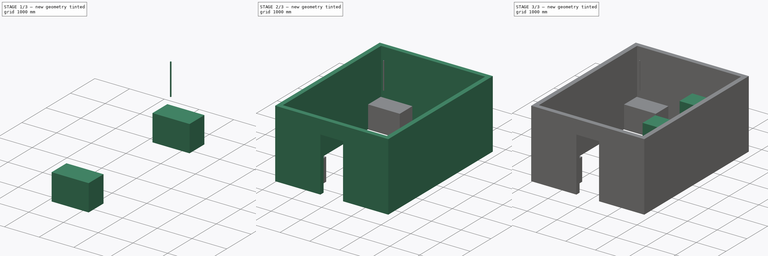
[diagram: build sequence overview — one tinted view per stage of 3, left to right]
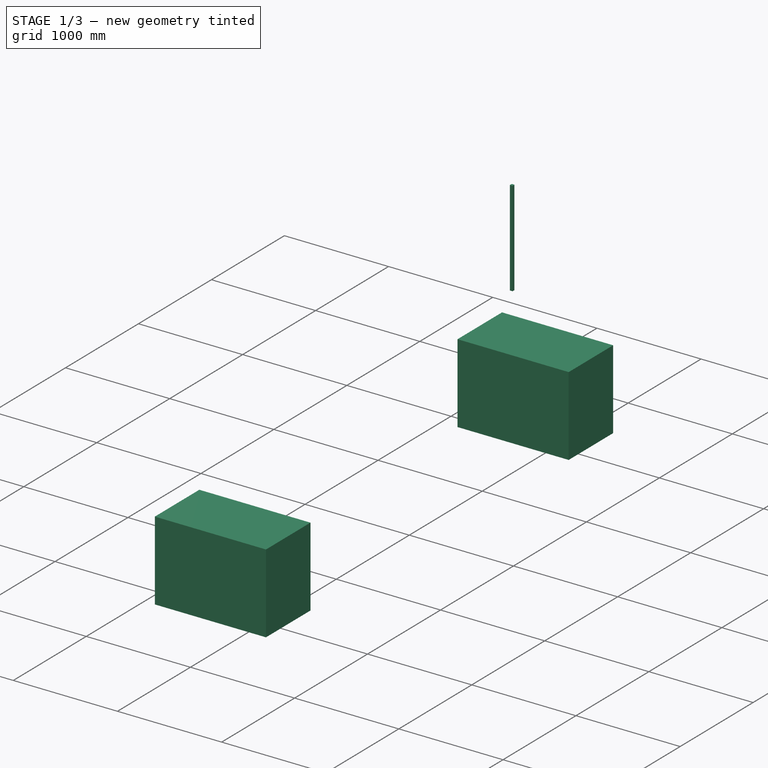
[diagram: stage 1 of 3 — iso view after this stage's code; geometry added in this stage tinted green]
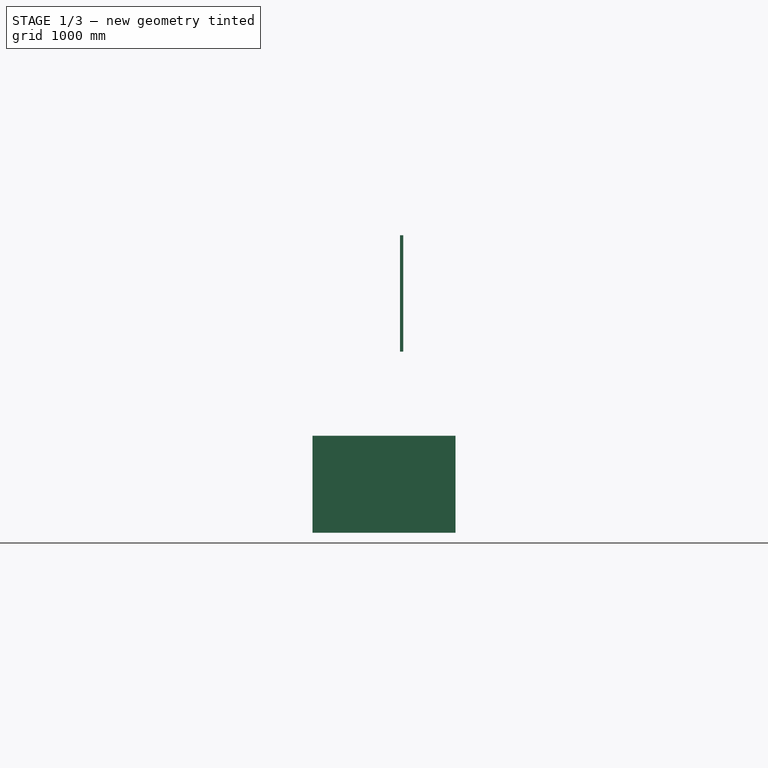
[diagram: stage 1 of 3 — front view after this stage's code; geometry added in this stage tinted green]
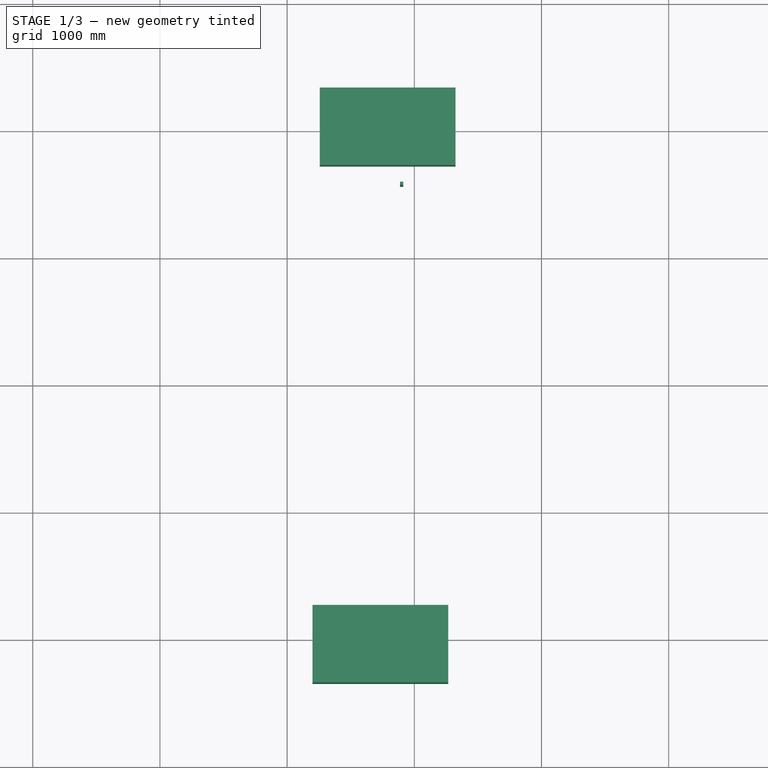
[diagram: stage 1 of 3 — top view after this stage's code; geometry added in this stage tinted green]
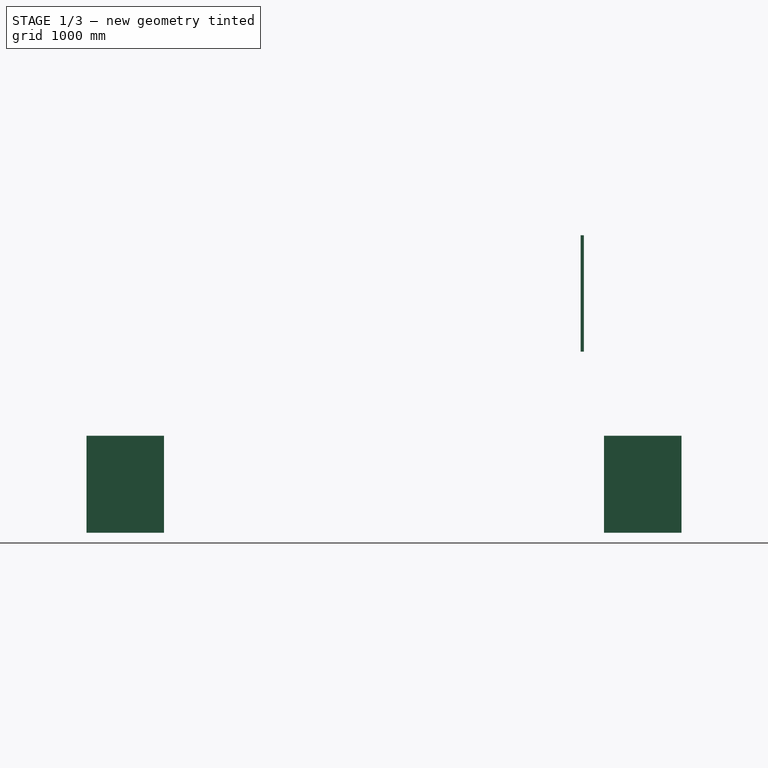
[diagram: stage 1 of 3 — right view after this stage's code; geometry added in this stage tinted green]
FCSTD DOCUMENT  (FreeCAD 0.16R6704 (Git))
Label: room1
License: All rights reserved
LicenseURL: http://en.wikipedia.org/wiki/All_rights_reserved
objects: Part::Box×6, Sketcher::SketchObject×2, Part::Feature×2, PartDesign::Pad×1, App::MeasureDistance×1, PartDesign::Pocket×1, App::DocumentObjectGroup×1
note: 14 computed .brp shape members not serialized (recipe doc carries the construction recipe); baked Part::Feature solids carry a one-line shape summary decoded from their .brp

FEATURE [App::DocumentObjectGroup] Group  label="Room001"
  Group = -> [Pocket,Pad]
FEATURE [Part::Box] Box003  label="Desk 1"
  Height = 762
  Length = 1066.8
  Placement = pos=(-1800.06,-2344.93,0) rot=(0,0,1;0rad)
  Width = 609.6
FEATURE [Part::Box] Box004  label="Desk 2"
  Height = 762
  Length = 1066.8
  Placement = pos=(-1743.36,1723.38,-3.81366e-05) rot=(0,0,1;0rad)
  Width = 609.6
FEATURE [Part::Box] Box005  label="Yard Stick"
  Height = 914.4
  Length = 25.4
  Placement = pos=(-1112.03,1539.79,1423.88) rot=(0,0,1;0rad)
  Width = 25.4
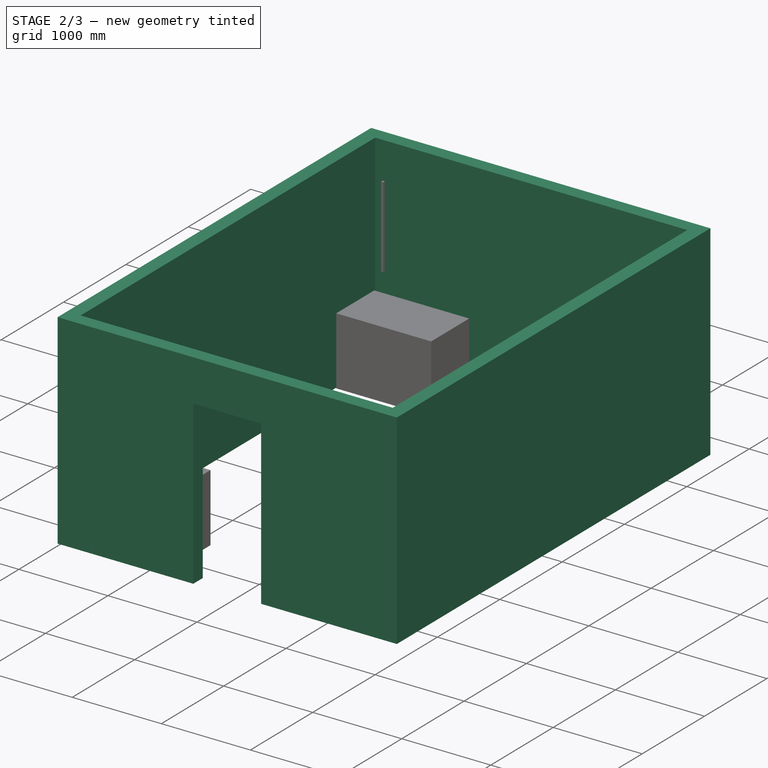
[diagram: stage 2 of 3 — iso view after this stage's code; geometry added in this stage tinted green]
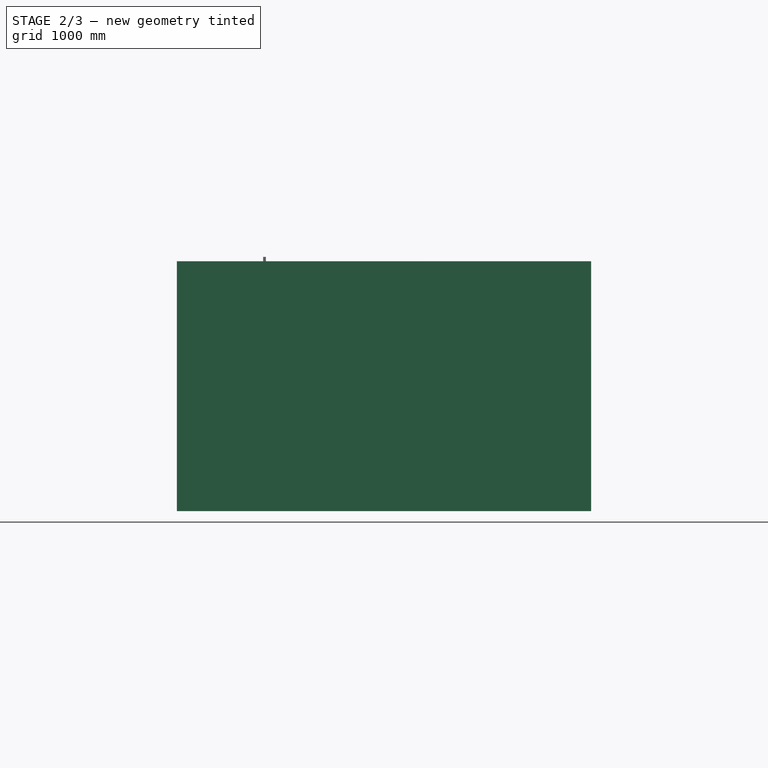
[diagram: stage 2 of 3 — front view after this stage's code; geometry added in this stage tinted green]
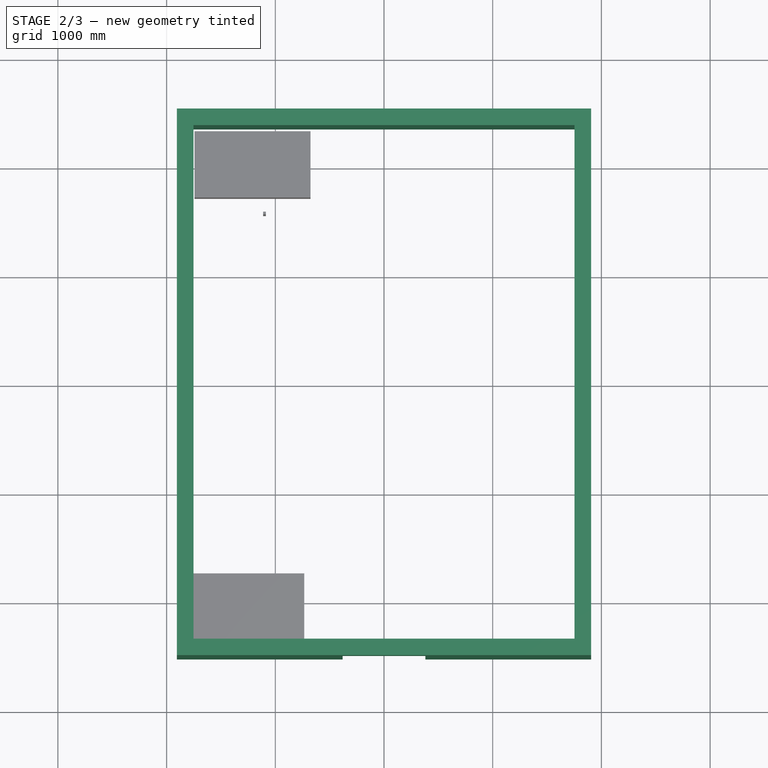
[diagram: stage 2 of 3 — top view after this stage's code; geometry added in this stage tinted green]
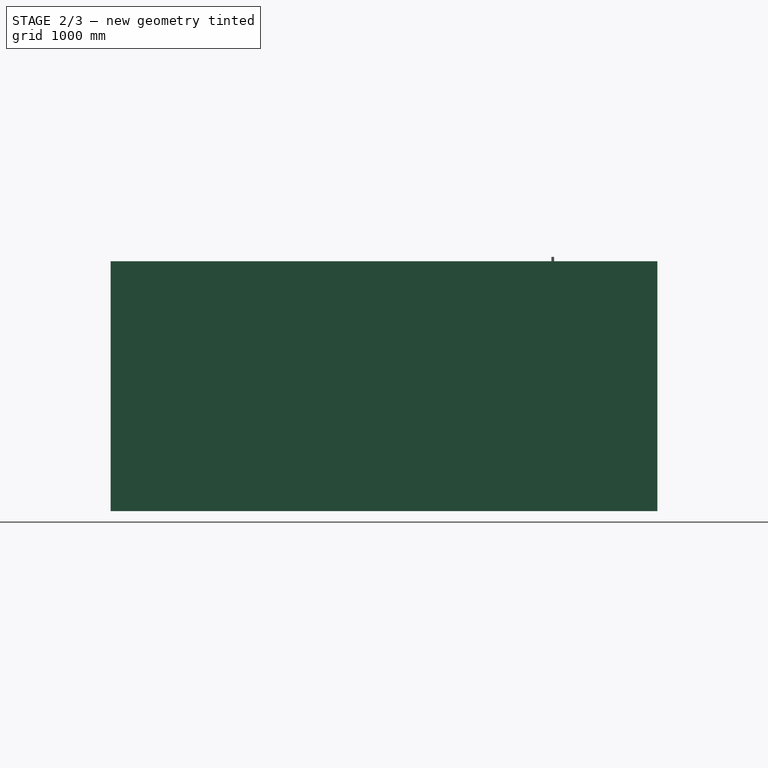
[diagram: stage 2 of 3 — right view after this stage's code; geometry added in this stage tinted green]
FEATURE [Sketcher::SketchObject] Sketch
  sketch-geometry (8):
    g0: LineSegment StartX=-1752.6 StartY=2362.2 StartZ=0 EndX=1752.6 EndY=2362.2 EndZ=0
    g1: LineSegment StartX=1752.6 StartY=2362.2 StartZ=0 EndX=1752.6 EndY=-2362.2 EndZ=0
    g2: LineSegment StartX=1752.6 StartY=-2362.2 StartZ=0 EndX=-1752.6 EndY=-2362.2 EndZ=0
    g3: LineSegment StartX=-1752.6 StartY=-2362.2 StartZ=0 EndX=-1752.6 EndY=2362.2 EndZ=0
    g4: LineSegment StartX=-1905 StartY=2514.6 StartZ=0 EndX=1905 EndY=2514.6 EndZ=0
    g5: LineSegment StartX=1905 StartY=2514.6 StartZ=0 EndX=1905 EndY=-2514.6 EndZ=0
    g6: LineSegment StartX=1905 StartY=-2514.6 StartZ=0 EndX=-1905 EndY=-2514.6 EndZ=0
    g7: LineSegment StartX=-1905 StartY=-2514.6 StartZ=0 EndX=-1905 EndY=2514.6 EndZ=0
  constraints (24):
    c: Coincident(g0,g1)
    c: Coincident(g1,g2)
    c: Coincident(g2,g3)
    c: Coincident(g3,g0)
    c: Horizontal(g0)
    c: Horizontal(g2)
    c: Vertical(g1)
    c: Vertical(g3)
    c: DistanceX(g0,g0) = 3505.2
    c: DistanceY(g3,g3) = 4724.4
    c: Coincident(g4,g5)
    c: Coincident(g5,g6)
    c: Coincident(g6,g7)
    c: Coincident(g7,g4)
    c: Horizontal(g4)
    c: Horizontal(g6)
    c: Vertical(g5)
    c: Vertical(g7)
    c: DistanceX(g0,g4) = 152.4
    c: DistanceY(g0,g4) = 152.4
    c: DistanceY(g6,g2) = 152.4
    c: DistanceX(g6,g2) = 152.4
    c: Symmetric(g0,g0,g-2)
    c: Symmetric(g0,g1,g-1)
FEATURE [PartDesign::Pad] Pad
  Length = 2298.7
  Length2 = 100
  Sketch = -> Sketch
  Type = 0
FEATURE [Sketcher::SketchObject] Sketch001
  Placement = pos=(0,-2514.6,0) rot=(1,0,0;1.5708rad)
  Support = -> Pad [Face3]
  sketch-geometry (4):
    g0: LineSegment StartX=-381 StartY=1828.8 StartZ=0 EndX=381 EndY=1828.8 EndZ=0
    g1: LineSegment StartX=381 StartY=1828.8 StartZ=0 EndX=381 EndY=0 EndZ=0
    g2: LineSegment StartX=381 StartY=0 StartZ=0 EndX=-381 EndY=0 EndZ=0
    g3: LineSegment StartX=-381 StartY=0 StartZ=0 EndX=-381 EndY=1828.8 EndZ=0
  constraints (12):
    c: Coincident(g0,g1)
    c: Coincident(g1,g2)
    c: Coincident(g2,g3)
    c: Coincident(g3,g0)
    c: Horizontal(g0)
    c: Horizontal(g2)
    c: Vertical(g1)
    c: Vertical(g3)
    c: DistanceY(g1,g1) = 1828.8
    c: DistanceX(g0,g0) = 762
    c: PointOnObject(g-1,g2)
    c: Symmetric(g1,g2,g-2)
FEATURE [PartDesign::Pocket] Pocket  label="Room"
  Length = 0
  Sketch = -> Sketch001
  Type = 2
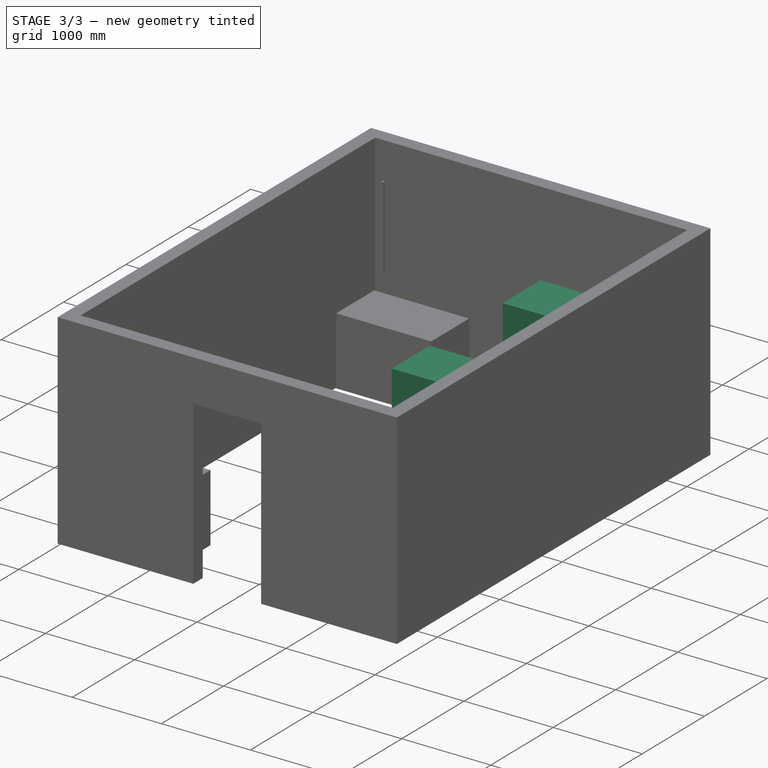
[diagram: stage 3 of 3 — iso view after this stage's code; geometry added in this stage tinted green]
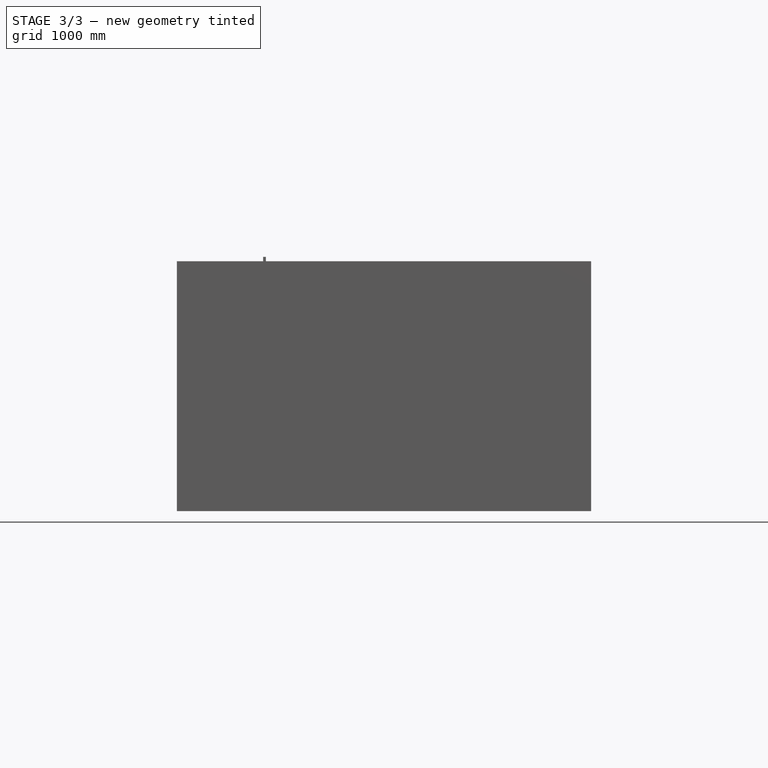
[diagram: stage 3 of 3 — front view after this stage's code; geometry added in this stage tinted green]
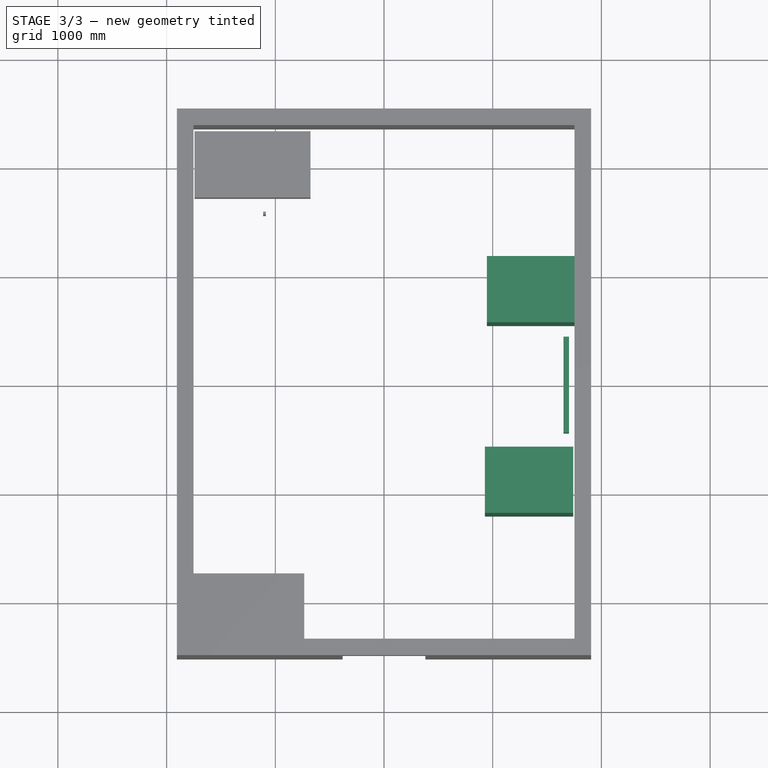
[diagram: stage 3 of 3 — top view after this stage's code; geometry added in this stage tinted green]
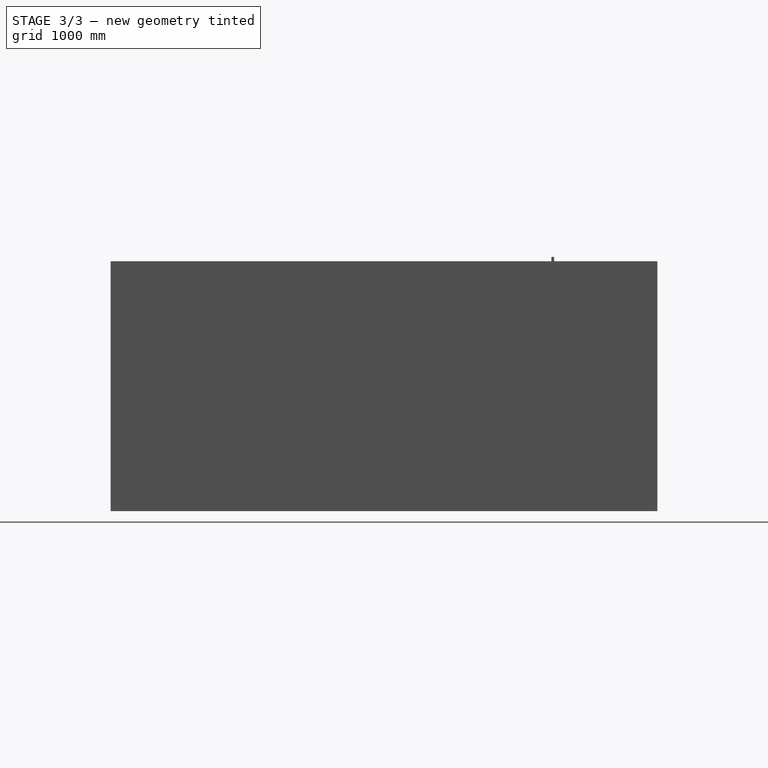
[diagram: stage 3 of 3 — right view after this stage's code; geometry added in this stage tinted green]
FEATURE [Part::Feature] Part__Feature  label="Bed 2"
  Placement = pos=(-1226.99,-218.794,1108.73) rot=(1,0,0;1.5708rad)
  shape: bbox 1029 x 2134 x 762 mm, 20 faces (baked)
FEATURE [Part::Feature] Part__Feature001  label="Bed 1"
  Placement = pos=(-1180.85,1912.95,1177.02) rot=(1,0,0;1.5708rad)
  shape: bbox 1029 x 2134 x 762 mm, 20 faces (baked)
FEATURE [App::MeasureDistance] Distance  label="Distance: 1.5 '"
  Distance = 457.2
  P1 = (-730.25,-228.6,1651)
  P2 = (-730.25,228.6,1651)
FEATURE [Part::Box] Box  label="Wardrobe 1"
  Height = 2032
  Length = 812.8
  Placement = pos=(946.426,552.535,0.00015451) rot=(0,0,1;0rad)
  Width = 609.6
FEATURE [Part::Box] Box001  label="TV"
  Height = 497.84
  Length = 50.8
  Placement = pos=(1651,-457.2,1219.2) rot=(0,0,1;0rad)
  Width = 883.92
FEATURE [Part::Box] Box002  label="Wardrobe 2"
  Height = 2032
  Length = 812.8
  Placement = pos=(927.906,-1200.43,-2.31857e-05) rot=(0,0,1;0rad)
  Width = 609.6
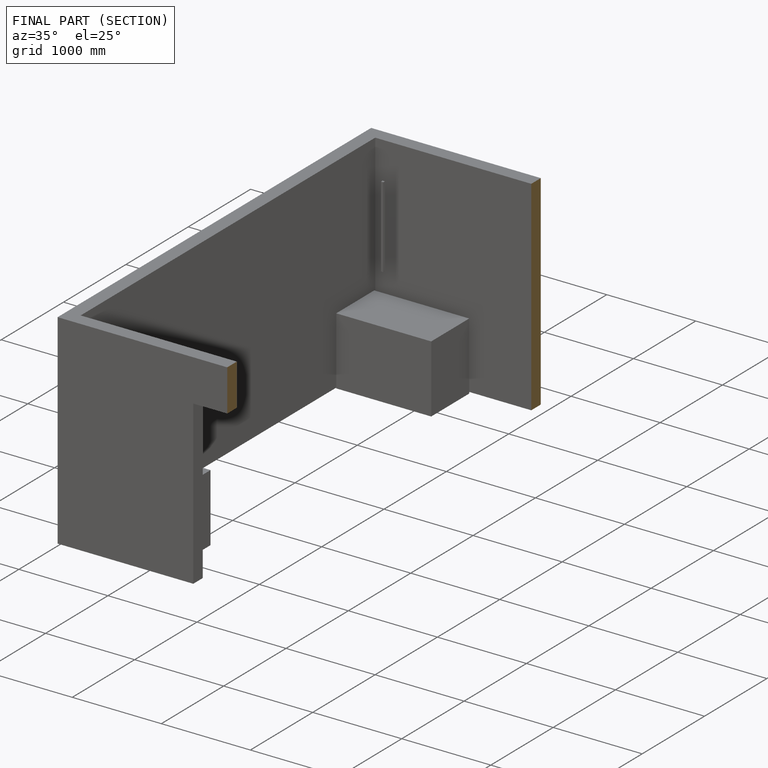
[diagram: finished part — half-section view (interior)]
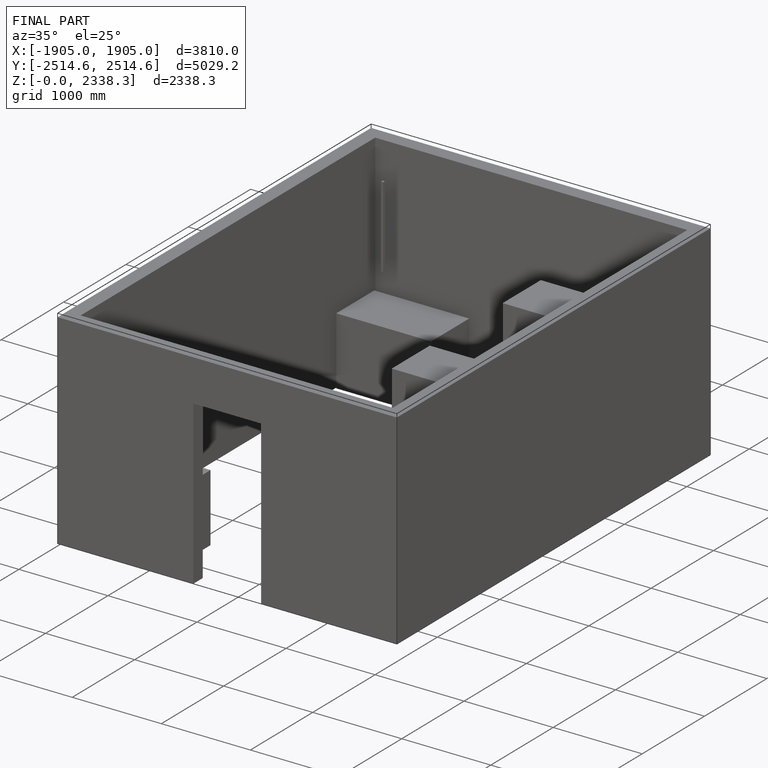
[diagram: finished part — iso view with bounding-box wireframe]
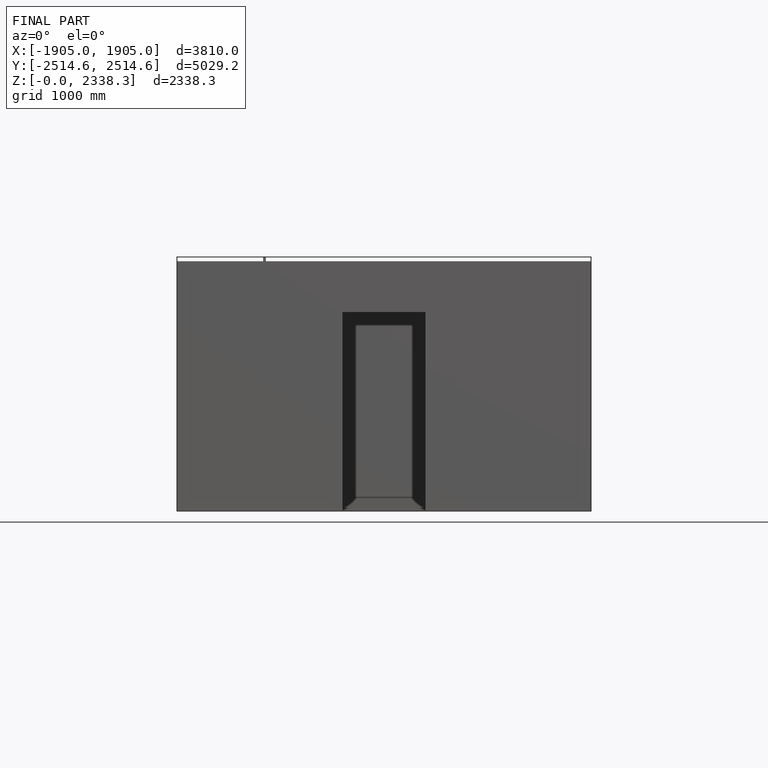
[diagram: finished part — front view with bounding-box wireframe]
